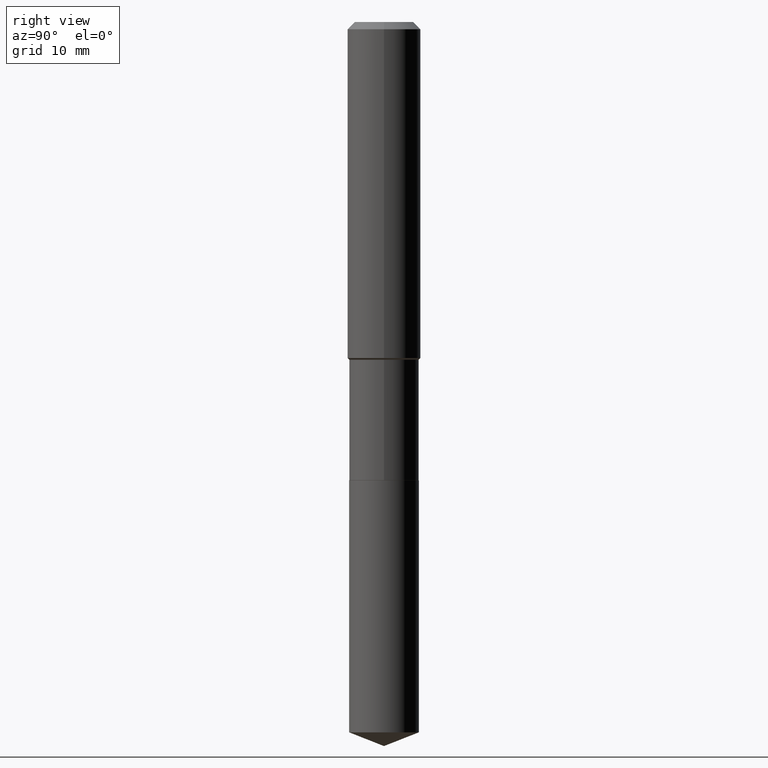
[diagram: clean part render]
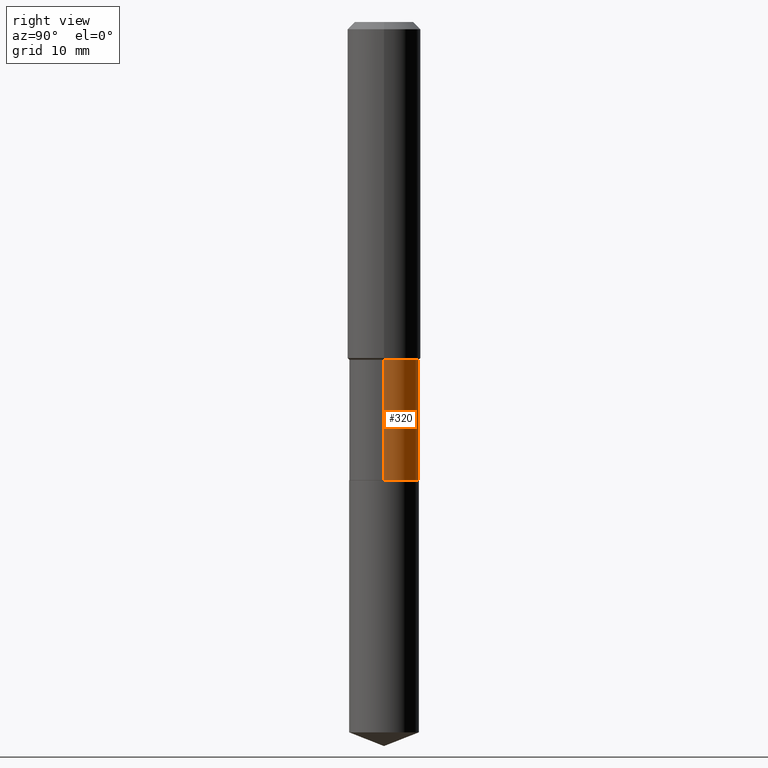
[diagram: same view with one face highlighted and labeled with its STEP entity id]
A machine part, right view. The second image highlights one B-rep face of the part: STEP entity #320.
In plain terms, the highlighted cylindrical surface (edge-blend (fillet) strip) has radius 3.7998 mm, axis along (-0, 0, 1).
Its self-contained STEP definition (entity closure, byte-faithful):
#44 = VERTEX_POINT ( 'NONE', #369 ) ;
#46 = DIRECTION ( 'NONE',  ( -2.445468806185136597E-29, 3.491481338843145583E-15, 1.000000000000000000 ) ) ;
#48 = LINE ( 'NONE', #354, #71 ) ;
#50 = EDGE_LOOP ( 'NONE', ( #379, #135, #209, #403 ) ) ;
#56 = CARTESIAN_POINT ( 'NONE',  ( 0.1495999999999999275, -6.111139787377153629E-15, -1.451100000000000056 ) ) ;
#63 = CIRCLE ( 'NONE', #176, 0.1496000000000000107 ) ;
#71 = VECTOR ( 'NONE', #92, 39.37007874015748143 ) ;
#92 = DIRECTION ( 'NONE',  ( -2.445468806185136877E-29, 3.491481338843145188E-15, 1.000000000000000000 ) ) ;
#104 = DIRECTION ( 'NONE',  ( -2.445468806185136597E-29, 3.491481338843145583E-15, 1.000000000000000000 ) ) ;
#135 = ORIENTED_EDGE ( 'NONE', *, *, #184, .T. ) ;
#146 = EDGE_CURVE ( 'NONE', #462, #44, #63, .T. ) ;
#157 = CARTESIAN_POINT ( 'NONE',  ( -0.1495999999999999830, 1.062971932697109757E-15, -7.358726895021337359E-30 ) ) ;
#166 = VERTEX_POINT ( 'NONE', #56 ) ;
#176 = AXIS2_PLACEMENT_3D ( 'NONE', #399, #46, #352 ) ;
#178 = CYLINDRICAL_SURFACE ( 'NONE', #334, 0.1495999999999999830 ) ;
#184 = EDGE_CURVE ( 'NONE', #44, #312, #314, .T. ) ;
#187 = DIRECTION ( 'NONE',  ( 1.000000000000000000, -6.982962677686265922E-15, 4.876176775795935793E-29 ) ) ;
#199 = DIRECTION ( 'NONE',  ( 1.000000000000000000, -6.982962677686265133E-15, 0.000000000000000000 ) ) ;
#207 = CARTESIAN_POINT ( 'NONE',  ( -0.1495999999999999275, -4.905889990122190345E-15, -1.451100000000000056 ) ) ;
#209 = ORIENTED_EDGE ( 'NONE', *, *, #381, .F. ) ;
#223 = FACE_OUTER_BOUND ( 'NONE', #50, .T. ) ;
#248 = CARTESIAN_POINT ( 'NONE',  ( 0.1496000000000000107, -7.915886491425176593E-15, -1.968000000000000194 ) ) ;
#292 = AXIS2_PLACEMENT_3D ( 'NONE', #441, #104, #199 ) ;
#312 = VERTEX_POINT ( 'NONE', #207 ) ;
#314 = LINE ( 'NONE', #157, #372 ) ;
#320 = ADVANCED_FACE ( 'NONE', ( #223 ), #178, .T. ) ;
#334 = AXIS2_PLACEMENT_3D ( 'NONE', #473, #401, #187 ) ;
#352 = DIRECTION ( 'NONE',  ( 1.000000000000000000, -6.982962677686268288E-15, 0.000000000000000000 ) ) ;
#354 = CARTESIAN_POINT ( 'NONE',  ( 0.1495999999999999830, -1.044651216581865206E-15, 7.294760456590718926E-30 ) ) ;
#369 = CARTESIAN_POINT ( 'NONE',  ( -0.1496000000000000107, -4.905889990122190345E-15, -1.968000000000000194 ) ) ;
#372 = VECTOR ( 'NONE', #464, 39.37007874015748143 ) ;
#379 = ORIENTED_EDGE ( 'NONE', *, *, #146, .T. ) ;
#381 = EDGE_CURVE ( 'NONE', #166, #312, #383, .T. ) ;
#383 = CIRCLE ( 'NONE', #292, 0.1495999999999999275 ) ;
#399 = CARTESIAN_POINT ( 'NONE',  ( 4.812682610572349594E-29, -6.871235274843310993E-15, -1.968000000000000194 ) ) ;
#401 = DIRECTION ( 'NONE',  ( -2.445468806185136597E-29, 3.491481338843145583E-15, 1.000000000000000000 ) ) ;
#403 = ORIENTED_EDGE ( 'NONE', *, *, #410, .F. ) ;
#410 = EDGE_CURVE ( 'NONE', #462, #166, #48, .T. ) ;
#441 = CARTESIAN_POINT ( 'NONE',  ( 3.548619784655251556E-29, -5.066488570795288817E-15, -1.451100000000000056 ) ) ;
#462 = VERTEX_POINT ( 'NONE', #248 ) ;
#464 = DIRECTION ( 'NONE',  ( -2.445468806185136877E-29, 3.491481338843145188E-15, 1.000000000000000000 ) ) ;
#473 = CARTESIAN_POINT ( 'NONE',  ( 0.000000000000000000, 0.000000000000000000, 0.000000000000000000 ) ) ;